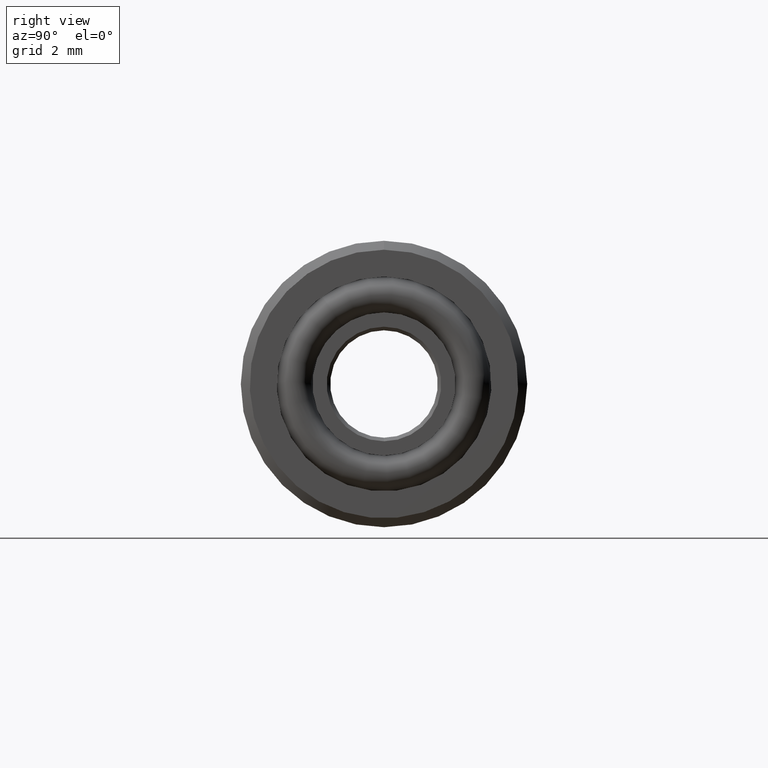
[diagram: clean part render]
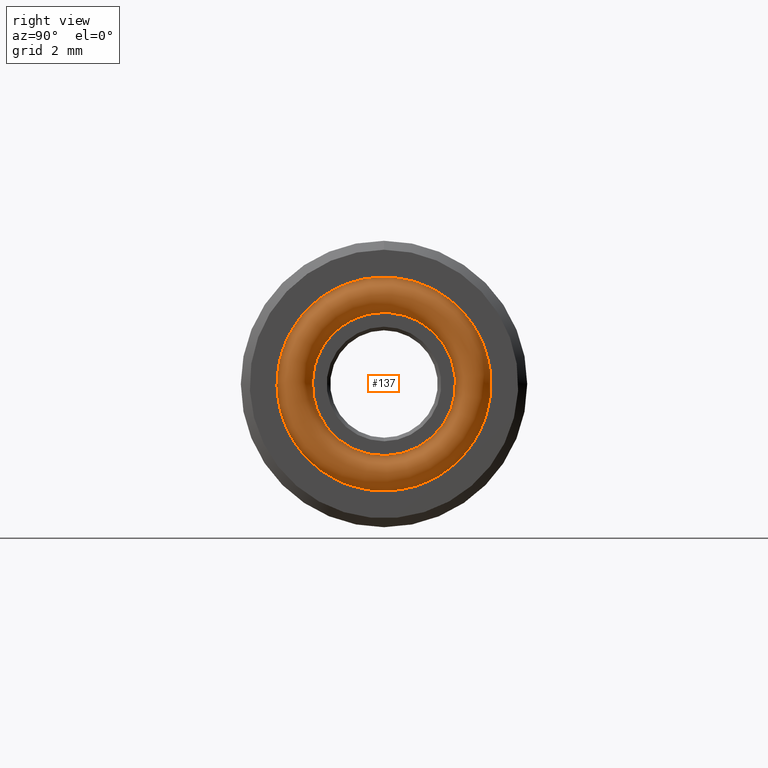
[diagram: same view with one face highlighted and labeled with its STEP entity id]
A machine part, right view. The second image highlights one B-rep face of the part: STEP entity #137.
In plain terms, the highlighted toroidal blend (fillet) surface has major radius 2.5 mm and minor (blend) radius 0.5 mm.
Its self-contained STEP definition (entity closure, byte-faithful):
#137 = ADVANCED_FACE( '', ( #249 ), #250, .T. );
#249 = FACE_BOUND( '', #383, .T. );
#250 = TOROIDAL_SURFACE( '', #384, 2.50000000000000, 0.500000000000000 );
#383 = VERTEX_LOOP( '', #505 );
#384 = AXIS2_PLACEMENT_3D( '', #506, #507, #508 );
#505 = VERTEX_POINT( '', #740 );
#506 = CARTESIAN_POINT( '', ( 0.000000000000000, 0.000000000000000, 0.000000000000000 ) );
#507 = DIRECTION( '', ( -1.00000000000000, 0.000000000000000, 0.000000000000000 ) );
#508 = DIRECTION( '', ( 0.000000000000000, 0.000000000000000, 1.00000000000000 ) );
#740 = CARTESIAN_POINT( '', ( 0.000000000000000, 0.000000000000000, 3.00000000000000 ) );